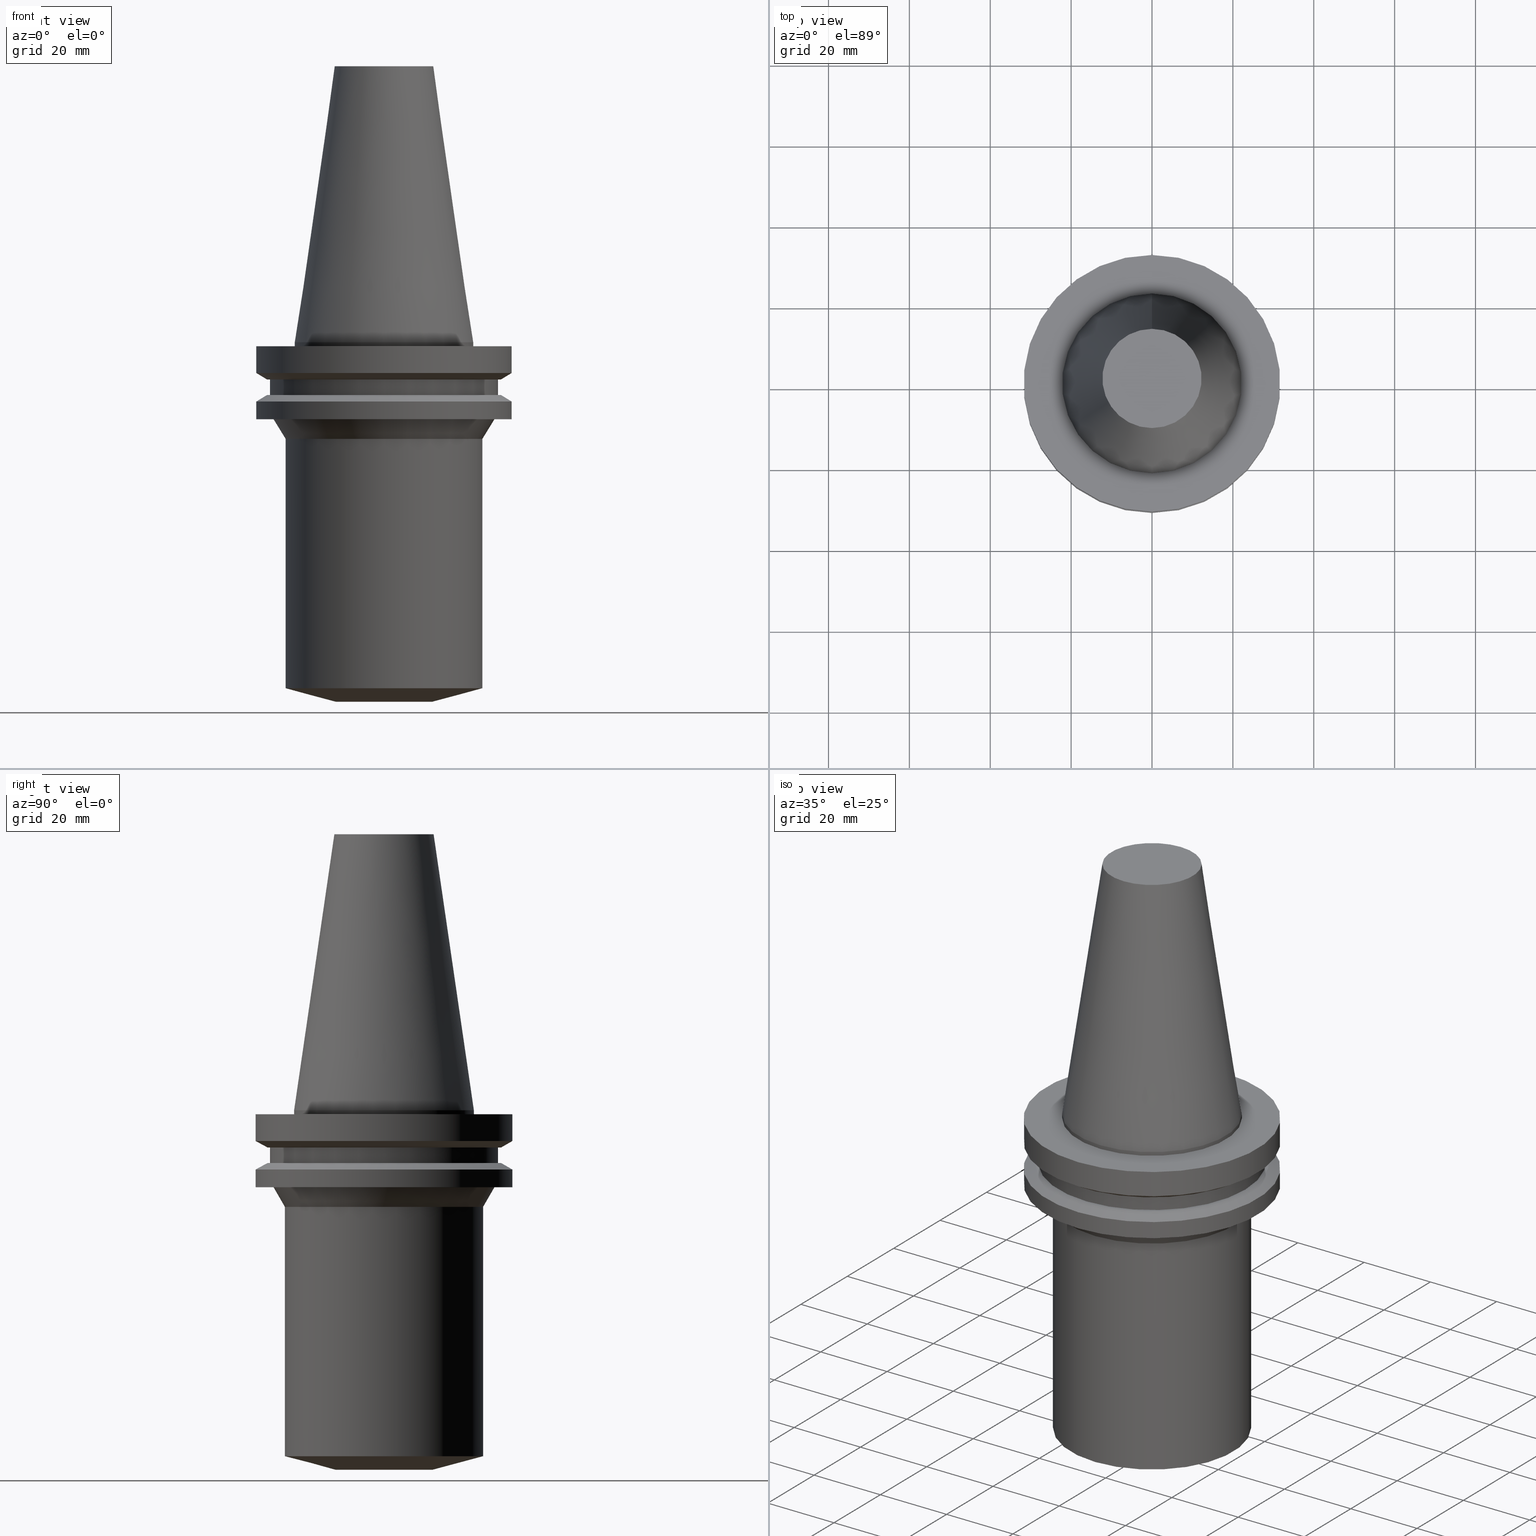
[diagram: canonical four-view strip — front | top / right | iso, engineering-drawing reading convention]
A machine part, canonical four-view strip (front | top / right | iso — engineering-drawing reading convention). The complete STEP part file that produces these views, byte-faithful:
ISO-10303-21;
HEADER;
FILE_DESCRIPTION((''),'1');
FILE_NAME('V:/01_Dxf_Field-HP\X2\FF71FF6FFF8CFF9F5916\X0\2013/BIGKAISER\X2\FF76FF80FF9BFF78FF9E63B28F095206\X0\_BKUS_201803/BCV40Y-BSL/BCV40Y-BSL.750-3.5.stp','2018-03-13T06:21:03',(''),(''),'Spatial Interop R21 SP3','Kubotek KeyCreator 2011 V10.0.2 (22737)',' ');
FILE_SCHEMA(('automotive_design'));
ENDSEC;
DATA;
#1=MECHANICAL_DESIGN_GEOMETRIC_PRESENTATION_REPRESENTATION(' ',(#10,#11,#12,#13,#14,#15,#16,#17,#18,#19,#20,#21,#22,#23,#24,#25,#26,#27,#28,#29,#30,#31,#32,#33,#34,#35,#36,#37,#38,#39,#40,#41),#6);
#2=PRODUCT_DEFINITION_CONTEXT('',#42,'design');
#3=APPLICATION_PROTOCOL_DEFINITION('INTERNATIONAL STANDARD','automotive_design',1994,#42);
#4=PRODUCT_CATEGORY_RELATIONSHIP('NONE','NONE',#43,#44);
#5=SHAPE_DEFINITION_REPRESENTATION(#45,#46);
#6= (GEOMETRIC_REPRESENTATION_CONTEXT(3)GLOBAL_UNCERTAINTY_ASSIGNED_CONTEXT((#49))GLOBAL_UNIT_ASSIGNED_CONTEXT((#51,#52,#53))REPRESENTATION_CONTEXT('NONE','WORKSPACE'));
#10=STYLED_ITEM('',(#55),#56);
#11=STYLED_ITEM('',(#57,#58),#59);
#12=STYLED_ITEM('',(#60),#61);
#13=STYLED_ITEM('',(#62),#63);
#14=STYLED_ITEM('',(#64,#65),#66);
#15=STYLED_ITEM('',(#67),#68);
#16=STYLED_ITEM('',(#69),#70);
#17=STYLED_ITEM('',(#71),#72);
#18=STYLED_ITEM('',(#73,#74),#75);
#19=STYLED_ITEM('',(#76,#77),#78);
#20=STYLED_ITEM('',(#79,#80),#81);
#21=STYLED_ITEM('',(#82,#83),#84);
#22=STYLED_ITEM('',(#85,#86),#87);
#23=STYLED_ITEM('',(#88),#89);
#24=STYLED_ITEM('',(#90,#91),#92);
#25=STYLED_ITEM('',(#93),#94);
#26=STYLED_ITEM('',(#95),#96);
#27=STYLED_ITEM('',(#97,#98),#99);
#28=STYLED_ITEM('',(#100,#101),#102);
#29=STYLED_ITEM('',(#103,#104),#105);
#30=STYLED_ITEM('',(#106),#107);
#31=STYLED_ITEM('',(#108,#109),#110);
#32=STYLED_ITEM('',(#111,#112),#113);
#33=STYLED_ITEM('',(#114,#115),#116);
#34=STYLED_ITEM('',(#117),#118);
#35=STYLED_ITEM('',(#119),#120);
#36=STYLED_ITEM('',(#121,#122),#123);
#37=STYLED_ITEM('',(#124),#125);
#38=STYLED_ITEM('',(#126),#127);
#39=STYLED_ITEM('',(#128),#129);
#40=STYLED_ITEM('',(#130,#131),#132);
#41=STYLED_ITEM('',(#133,#134),#135);
#42=APPLICATION_CONTEXT(' ');
#43=PRODUCT_CATEGORY('part','NONE');
#44=PRODUCT_RELATED_PRODUCT_CATEGORY('detail',' ',(#136));
#45=PRODUCT_DEFINITION_SHAPE('NONE','NONE',#137);
#46=ADVANCED_BREP_SHAPE_REPRESENTATION('Unnamed[1]',(#135,#138),#6);
#49=UNCERTAINTY_MEASURE_WITH_UNIT(LENGTH_MEASURE(1.0E-006),#51,'','');
#51= (CONVERSION_BASED_UNIT('MILLIMETRE',#141)LENGTH_UNIT()NAMED_UNIT(#144));
#52= (NAMED_UNIT(#146)PLANE_ANGLE_UNIT()SI_UNIT($,.RADIAN.));
#53= (NAMED_UNIT(#146)SOLID_ANGLE_UNIT()SI_UNIT($,.STERADIAN.));
#55=PRESENTATION_STYLE_ASSIGNMENT((#152));
#56=EDGE_CURVE('Unnamed[1]',#153,#153,#154,.T.);
#57=PRESENTATION_STYLE_ASSIGNMENT((#155));
#58=PRESENTATION_STYLE_ASSIGNMENT((#156));
#59=ADVANCED_FACE('Unnamed[1]',(#157,#158),#159,.T.);
#60=PRESENTATION_STYLE_ASSIGNMENT((#160));
#61=EDGE_CURVE('Unnamed[1]',#161,#161,#162,.T.);
#62=PRESENTATION_STYLE_ASSIGNMENT((#163));
#63=EDGE_CURVE('Unnamed[1]',#164,#164,#165,.T.);
#64=PRESENTATION_STYLE_ASSIGNMENT((#166));
#65=PRESENTATION_STYLE_ASSIGNMENT((#167));
#66=ADVANCED_FACE('Unnamed[1]',(#168,#169),#170,.T.);
#67=PRESENTATION_STYLE_ASSIGNMENT((#171));
#68=EDGE_CURVE('Unnamed[1]',#172,#172,#173,.T.);
#69=PRESENTATION_STYLE_ASSIGNMENT((#174));
#70=EDGE_CURVE('Unnamed[1]',#175,#175,#176,.T.);
#71=PRESENTATION_STYLE_ASSIGNMENT((#177));
#72=EDGE_CURVE('Unnamed[1]',#178,#178,#179,.T.);
#73=PRESENTATION_STYLE_ASSIGNMENT((#180));
#74=PRESENTATION_STYLE_ASSIGNMENT((#181));
#75=ADVANCED_FACE('Unnamed[1]',(#182,#183),#184,.T.);
#76=PRESENTATION_STYLE_ASSIGNMENT((#185));
#77=PRESENTATION_STYLE_ASSIGNMENT((#186));
#78=ADVANCED_FACE('Unnamed[1]',(#187,#188),#189,.T.);
#79=PRESENTATION_STYLE_ASSIGNMENT((#190));
#80=PRESENTATION_STYLE_ASSIGNMENT((#191));
#81=ADVANCED_FACE('Unnamed[1]',(#192,#193),#194,.T.);
#82=PRESENTATION_STYLE_ASSIGNMENT((#195));
#83=PRESENTATION_STYLE_ASSIGNMENT((#196));
#84=ADVANCED_FACE('Unnamed[1]',(#197),#198,.T.);
#85=PRESENTATION_STYLE_ASSIGNMENT((#199));
#86=PRESENTATION_STYLE_ASSIGNMENT((#200));
#87=ADVANCED_FACE('Unnamed[1]',(#201,#202),#203,.T.);
#88=PRESENTATION_STYLE_ASSIGNMENT((#204));
#89=EDGE_CURVE('Unnamed[1]',#205,#205,#206,.T.);
#90=PRESENTATION_STYLE_ASSIGNMENT((#207));
#91=PRESENTATION_STYLE_ASSIGNMENT((#208));
#92=ADVANCED_FACE('Unnamed[1]',(#209,#210),#211,.T.);
#93=PRESENTATION_STYLE_ASSIGNMENT((#212));
#94=EDGE_CURVE('Unnamed[1]',#213,#213,#214,.T.);
#95=PRESENTATION_STYLE_ASSIGNMENT((#215));
#96=EDGE_CURVE('Unnamed[1]',#216,#216,#217,.T.);
#97=PRESENTATION_STYLE_ASSIGNMENT((#218));
#98=PRESENTATION_STYLE_ASSIGNMENT((#219));
#99=ADVANCED_FACE('Unnamed[1]',(#220,#221),#222,.T.);
#100=PRESENTATION_STYLE_ASSIGNMENT((#223));
#101=PRESENTATION_STYLE_ASSIGNMENT((#224));
#102=ADVANCED_FACE('Unnamed[1]',(#225,#226),#227,.T.);
#103=PRESENTATION_STYLE_ASSIGNMENT((#228));
#104=PRESENTATION_STYLE_ASSIGNMENT((#229));
#105=ADVANCED_FACE('Unnamed[1]',(#230),#231,.T.);
#106=PRESENTATION_STYLE_ASSIGNMENT((#232));
#107=EDGE_CURVE('Unnamed[1]',#233,#233,#234,.T.);
#108=PRESENTATION_STYLE_ASSIGNMENT((#235));
#109=PRESENTATION_STYLE_ASSIGNMENT((#236));
#110=ADVANCED_FACE('Unnamed[1]',(#237,#238),#239,.T.);
#111=PRESENTATION_STYLE_ASSIGNMENT((#240));
#112=PRESENTATION_STYLE_ASSIGNMENT((#241));
#113=ADVANCED_FACE('Unnamed[1]',(#242,#243),#244,.T.);
#114=PRESENTATION_STYLE_ASSIGNMENT((#245));
#115=PRESENTATION_STYLE_ASSIGNMENT((#246));
#116=ADVANCED_FACE('Unnamed[1]',(#247,#248),#249,.T.);
#117=PRESENTATION_STYLE_ASSIGNMENT((#250));
#118=EDGE_CURVE('Unnamed[1]',#251,#251,#252,.T.);
#119=PRESENTATION_STYLE_ASSIGNMENT((#253));
#120=EDGE_CURVE('Unnamed[1]',#254,#254,#255,.T.);
#121=PRESENTATION_STYLE_ASSIGNMENT((#256));
#122=PRESENTATION_STYLE_ASSIGNMENT((#257));
#123=ADVANCED_FACE('Unnamed[1]',(#258,#259),#260,.T.);
#124=PRESENTATION_STYLE_ASSIGNMENT((#261));
#125=EDGE_CURVE('Unnamed[1]',#262,#262,#263,.T.);
#126=PRESENTATION_STYLE_ASSIGNMENT((#264));
#127=EDGE_CURVE('Unnamed[1]',#265,#265,#266,.T.);
#128=PRESENTATION_STYLE_ASSIGNMENT((#267));
#129=EDGE_CURVE('Unnamed[1]',#268,#268,#269,.T.);
#130=PRESENTATION_STYLE_ASSIGNMENT((#270));
#131=PRESENTATION_STYLE_ASSIGNMENT((#271));
#132=ADVANCED_FACE('Unnamed[1]',(#272,#273),#274,.T.);
#133=PRESENTATION_STYLE_ASSIGNMENT((#275));
#134=PRESENTATION_STYLE_ASSIGNMENT((#276));
#135=MANIFOLD_SOLID_BREP('Unnamed[1]',#277);
#136=PRODUCT('Unnamed[1]','Unnamed[1]','PART-Unnamed[1]-DESC',(#278));
#137=PRODUCT_DEFINITION('NONE','NONE',#279,#2);
#138=AXIS2_PLACEMENT_3D('',#280,#281,#282);
#141=LENGTH_MEASURE_WITH_UNIT(LENGTH_MEASURE(1.0),#283);
#144=DIMENSIONAL_EXPONENTS(1.0,0.0,0.0,0.0,0.0,0.0,0.0);
#146=DIMENSIONAL_EXPONENTS(0.0,0.0,0.0,0.0,0.0,0.0,0.0);
#152=CURVE_STYLE('',#284,POSITIVE_LENGTH_MEASURE(1000.0),#285);
#153=VERTEX_POINT('',#286);
#154=CIRCLE('',#287,24.5000000000176);
#155=SURFACE_STYLE_USAGE(.BOTH.,#288);
#156=CURVE_STYLE('',#289,POSITIVE_LENGTH_MEASURE(1000.0),#290);
#157=FACE_BOUND('',#291,.T.);
#158=FACE_BOUND('',#292,.T.);
#159=CYLINDRICAL_SURFACE('',#293,31.75);
#160=CURVE_STYLE('',#294,POSITIVE_LENGTH_MEASURE(1000.0),#295);
#161=VERTEX_POINT('',#296);
#162=CIRCLE('',#297,22.225);
#163=CURVE_STYLE('',#298,POSITIVE_LENGTH_MEASURE(1000.0),#299);
#164=VERTEX_POINT('',#300);
#165=CIRCLE('',#301,24.5000000000476);
#166=SURFACE_STYLE_USAGE(.BOTH.,#302);
#167=CURVE_STYLE('',#303,POSITIVE_LENGTH_MEASURE(1000.0),#304);
#168=FACE_BOUND('',#305,.T.);
#169=FACE_OUTER_BOUND('',#306,.T.);
#170=PLANE('',#307);
#171=CURVE_STYLE('',#308,POSITIVE_LENGTH_MEASURE(1000.0),#309);
#172=VERTEX_POINT('',#310);
#173=CIRCLE('',#311,22.225);
#174=CURVE_STYLE('',#312,POSITIVE_LENGTH_MEASURE(1000.0),#313);
#175=VERTEX_POINT('',#314);
#176=CIRCLE('',#315,28.98016191);
#177=CURVE_STYLE('',#316,POSITIVE_LENGTH_MEASURE(1000.0),#317);
#178=VERTEX_POINT('',#318);
#179=CIRCLE('',#319,31.75);
#180=SURFACE_STYLE_USAGE(.BOTH.,#320);
#181=CURVE_STYLE('',#321,POSITIVE_LENGTH_MEASURE(1000.0),#322);
#182=FACE_BOUND('',#323,.T.);
#183=FACE_BOUND('',#324,.T.);
#184=CYLINDRICAL_SURFACE('',#325,28.18);
#185=SURFACE_STYLE_USAGE(.BOTH.,#326);
#186=CURVE_STYLE('',#327,POSITIVE_LENGTH_MEASURE(1000.0),#328);
#187=FACE_BOUND('',#329,.T.);
#188=FACE_BOUND('',#330,.T.);
#189=CONICAL_SURFACE('',#331,25.9000744027908,0.523598775597958);
#190=SURFACE_STYLE_USAGE(.BOTH.,#332);
#191=CURVE_STYLE('',#333,POSITIVE_LENGTH_MEASURE(1000.0),#334);
#192=FACE_BOUND('',#335,.T.);
#193=FACE_BOUND('',#336,.T.);
#194=CONICAL_SURFACE('',#337,17.2484375007384,0.144812498217751);
#195=SURFACE_STYLE_USAGE(.BOTH.,#338);
#196=CURVE_STYLE('',#339,POSITIVE_LENGTH_MEASURE(1000.0),#340);
#197=FACE_OUTER_BOUND('',#341,.T.);
#198=PLANE('',#342);
#199=SURFACE_STYLE_USAGE(.BOTH.,#343);
#200=CURVE_STYLE('',#344,POSITIVE_LENGTH_MEASURE(1000.0),#345);
#201=FACE_BOUND('',#346,.T.);
#202=FACE_OUTER_BOUND('',#347,.T.);
#203=PLANE('',#348);
#204=CURVE_STYLE('',#349,POSITIVE_LENGTH_MEASURE(1000.0),#350);
#205=VERTEX_POINT('',#351);
#206=CIRCLE('',#352,12.0000000000065);
#207=SURFACE_STYLE_USAGE(.BOTH.,#353);
#208=CURVE_STYLE('',#354,POSITIVE_LENGTH_MEASURE(1000.0),#355);
#209=FACE_OUTER_BOUND('',#356,.T.);
#210=FACE_BOUND('',#357,.T.);
#211=PLANE('',#358);
#212=CURVE_STYLE('',#359,POSITIVE_LENGTH_MEASURE(1000.0),#360);
#213=VERTEX_POINT('',#361);
#214=CIRCLE('',#362,27.300148805564);
#215=CURVE_STYLE('',#363,POSITIVE_LENGTH_MEASURE(1000.0),#364);
#216=VERTEX_POINT('',#365);
#217=CIRCLE('',#366,31.75);
#218=SURFACE_STYLE_USAGE(.BOTH.,#367);
#219=CURVE_STYLE('',#368,POSITIVE_LENGTH_MEASURE(1000.0),#369);
#220=FACE_BOUND('',#370,.T.);
#221=FACE_BOUND('',#371,.T.);
#222=CYLINDRICAL_SURFACE('',#372,24.5000000000326);
#223=SURFACE_STYLE_USAGE(.BOTH.,#373);
#224=CURVE_STYLE('',#374,POSITIVE_LENGTH_MEASURE(1000.0),#375);
#225=FACE_BOUND('',#376,.T.);
#226=FACE_BOUND('',#377,.T.);
#227=CYLINDRICAL_SURFACE('',#378,31.75);
#228=SURFACE_STYLE_USAGE(.BOTH.,#379);
#229=CURVE_STYLE('',#380,POSITIVE_LENGTH_MEASURE(1000.0),#381);
#230=FACE_OUTER_BOUND('',#382,.T.);
#231=PLANE('',#383);
#232=CURVE_STYLE('',#384,POSITIVE_LENGTH_MEASURE(1000.0),#385);
#233=VERTEX_POINT('',#386);
#234=CIRCLE('',#387,28.18);
#235=SURFACE_STYLE_USAGE(.BOTH.,#388);
#236=CURVE_STYLE('',#389,POSITIVE_LENGTH_MEASURE(1000.0),#390);
#237=FACE_OUTER_BOUND('',#391,.T.);
#238=FACE_BOUND('',#392,.T.);
#239=PLANE('',#393);
#240=SURFACE_STYLE_USAGE(.BOTH.,#394);
#241=CURVE_STYLE('',#395,POSITIVE_LENGTH_MEASURE(1000.0),#396);
#242=FACE_BOUND('',#397,.T.);
#243=FACE_BOUND('',#398,.T.);
#244=CYLINDRICAL_SURFACE('',#399,22.225);
#245=SURFACE_STYLE_USAGE(.BOTH.,#400);
#246=CURVE_STYLE('',#401,POSITIVE_LENGTH_MEASURE(1000.0),#402);
#247=FACE_BOUND('',#403,.T.);
#248=FACE_BOUND('',#404,.T.);
#249=CONICAL_SURFACE('',#405,18.2500000000271,1.30899693899528);
#250=CURVE_STYLE('',#406,POSITIVE_LENGTH_MEASURE(1000.0),#407);
#251=VERTEX_POINT('',#408);
#252=CIRCLE('',#409,28.95591319);
#253=CURVE_STYLE('',#410,POSITIVE_LENGTH_MEASURE(1000.0),#411);
#254=VERTEX_POINT('',#412);
#255=CIRCLE('',#413,12.2718750014769);
#256=SURFACE_STYLE_USAGE(.BOTH.,#414);
#257=CURVE_STYLE('',#415,POSITIVE_LENGTH_MEASURE(1000.0),#416);
#258=FACE_BOUND('',#417,.T.);
#259=FACE_BOUND('',#418,.T.);
#260=CONICAL_SURFACE('',#419,30.365080955,1.04719755034994);
#261=CURVE_STYLE('',#420,POSITIVE_LENGTH_MEASURE(1000.0),#421);
#262=VERTEX_POINT('',#422);
#263=CIRCLE('',#423,31.75);
#264=CURVE_STYLE('',#424,POSITIVE_LENGTH_MEASURE(1000.0),#425);
#265=VERTEX_POINT('',#426);
#266=CIRCLE('',#427,31.75);
#267=CURVE_STYLE('',#428,POSITIVE_LENGTH_MEASURE(1000.0),#429);
#268=VERTEX_POINT('',#430);
#269=CIRCLE('',#431,28.18);
#270=SURFACE_STYLE_USAGE(.BOTH.,#432);
#271=CURVE_STYLE('',#433,POSITIVE_LENGTH_MEASURE(1000.0),#434);
#272=FACE_BOUND('',#435,.T.);
#273=FACE_BOUND('',#436,.T.);
#274=CONICAL_SURFACE('',#437,30.352956595,1.04719755170464);
#275=SURFACE_STYLE_USAGE(.BOTH.,#438);
#276=CURVE_STYLE('',#439,POSITIVE_LENGTH_MEASURE(1000.0),#440);
#277=CLOSED_SHELL('',(#84,#81,#113,#110,#59,#123,#66,#75,#92,#132,#102,#87,#78,#99,#116,#105));
#278=PRODUCT_CONTEXT('',#42,'mechanical');
#279=PRODUCT_DEFINITION_FORMATION_WITH_SPECIFIED_SOURCE(' ','NONE',#136,.NOT_KNOWN.);
#280=CARTESIAN_POINT('',(0.0,0.0,0.0));
#281=DIRECTION('',(0.0,0.0,1.0));
#282=DIRECTION('',(1.0,0.0,0.0));
#283= (NAMED_UNIT(#144)LENGTH_UNIT()SI_UNIT(.MILLI.,.METRE.));
#284=DRAUGHTING_PRE_DEFINED_CURVE_FONT('continuous');
#285=COLOUR_RGB('',0.0,1.0,0.0);
#286=CARTESIAN_POINT('',(1.46345292497885E-015,24.5000000000176,-23.8999999999635));
#287=AXIS2_PLACEMENT_3D('',#442,#443,#444);
#288=SURFACE_SIDE_STYLE('',(#445));
#289=DRAUGHTING_PRE_DEFINED_CURVE_FONT('continuous');
#290=COLOUR_RGB('',0.0,1.0,0.0);
#291=EDGE_LOOP('',(#446));
#292=EDGE_LOOP('',(#447));
#293=AXIS2_PLACEMENT_3D('',#448,#449,#450);
#294=DRAUGHTING_PRE_DEFINED_CURVE_FONT('continuous');
#295=COLOUR_RGB('',0.0,1.0,0.0);
#296=CARTESIAN_POINT('',(6.12323399573674E-017,22.225,-0.999999999999997));
#297=AXIS2_PLACEMENT_3D('',#451,#452,#453);
#298=DRAUGHTING_PRE_DEFINED_CURVE_FONT('continuous');
#299=COLOUR_RGB('',0.0,1.0,0.0);
#300=CARTESIAN_POINT('',(5.23846557168079E-015,24.5000000000476,-85.5506350945924));
#301=AXIS2_PLACEMENT_3D('',#454,#455,#456);
#302=SURFACE_SIDE_STYLE('',(#457));
#303=DRAUGHTING_PRE_DEFINED_CURVE_FONT('continuous');
#304=COLOUR_RGB('',0.0,1.0,0.0);
#305=EDGE_LOOP('',(#458));
#306=EDGE_LOOP('',(#459));
#307=AXIS2_PLACEMENT_3D('',#460,#461,#462);
#308=DRAUGHTING_PRE_DEFINED_CURVE_FONT('continuous');
#309=COLOUR_RGB('',0.0,1.0,0.0);
#310=CARTESIAN_POINT('',(-2.73944275289641E-031,22.225,2.72177751110499E-015));
#311=AXIS2_PLACEMENT_3D('',#463,#464,#465);
#312=DRAUGHTING_PRE_DEFINED_CURVE_FONT('continuous');
#313=COLOUR_RGB('',0.0,1.0,0.0);
#314=CARTESIAN_POINT('',(5.63337527607782E-016,28.98016191,-9.2));
#315=AXIS2_PLACEMENT_3D('',#466,#467,#468);
#316=DRAUGHTING_PRE_DEFINED_CURVE_FONT('continuous');
#317=COLOUR_RGB('',0.0,1.0,0.0);
#318=CARTESIAN_POINT('',(1.16647607618785E-015,31.75,-19.05));
#319=AXIS2_PLACEMENT_3D('',#469,#470,#471);
#320=SURFACE_SIDE_STYLE('',(#472));
#321=DRAUGHTING_PRE_DEFINED_CURVE_FONT('continuous');
#322=COLOUR_RGB('',0.0,1.0,0.0);
#323=EDGE_LOOP('',(#473));
#324=EDGE_LOOP('',(#474));
#325=AXIS2_PLACEMENT_3D('',#475,#476,#477);
#326=SURFACE_SIDE_STYLE('',(#478));
#327=DRAUGHTING_PRE_DEFINED_CURVE_FONT('continuous');
#328=COLOUR_RGB('',0.0,1.0,0.0);
#329=EDGE_LOOP('',(#479));
#330=EDGE_LOOP('',(#480));
#331=AXIS2_PLACEMENT_3D('',#481,#482,#483);
#332=SURFACE_SIDE_STYLE('',(#484));
#333=DRAUGHTING_PRE_DEFINED_CURVE_FONT('continuous');
#334=COLOUR_RGB('',0.0,1.0,0.0);
#335=EDGE_LOOP('',(#485));
#336=EDGE_LOOP('',(#486));
#337=AXIS2_PLACEMENT_3D('',#487,#488,#489);
#338=SURFACE_SIDE_STYLE('',(#490));
#339=DRAUGHTING_PRE_DEFINED_CURVE_FONT('continuous');
#340=COLOUR_RGB('',0.0,1.0,0.0);
#341=EDGE_LOOP('',(#491));
#342=AXIS2_PLACEMENT_3D('',#492,#493,#494);
#343=SURFACE_SIDE_STYLE('',(#495));
#344=DRAUGHTING_PRE_DEFINED_CURVE_FONT('continuous');
#345=COLOUR_RGB('',0.0,1.0,0.0);
#346=EDGE_LOOP('',(#496));
#347=EDGE_LOOP('',(#497));
#348=AXIS2_PLACEMENT_3D('',#498,#499,#500);
#349=DRAUGHTING_PRE_DEFINED_CURVE_FONT('continuous');
#350=COLOUR_RGB('',0.0,1.0,0.0);
#351=CARTESIAN_POINT('',(5.44355502220991E-015,12.0000000000065,-88.8999999999987));
#352=AXIS2_PLACEMENT_3D('',#501,#502,#503);
#353=SURFACE_SIDE_STYLE('',(#504));
#354=DRAUGHTING_PRE_DEFINED_CURVE_FONT('continuous');
#355=COLOUR_RGB('',0.0,1.0,0.0);
#356=EDGE_LOOP('',(#505));
#357=EDGE_LOOP('',(#506));
#358=AXIS2_PLACEMENT_3D('',#507,#508,#509);
#359=DRAUGHTING_PRE_DEFINED_CURVE_FONT('continuous');
#360=COLOUR_RGB('',0.0,1.0,0.0);
#361=CARTESIAN_POINT('',(1.16647607618785E-015,27.300148805564,-19.05));
#362=AXIS2_PLACEMENT_3D('',#510,#511,#512);
#363=DRAUGHTING_PRE_DEFINED_CURVE_FONT('continuous');
#364=COLOUR_RGB('',0.0,1.0,0.0);
#365=CARTESIAN_POINT('',(4.65416804298617E-016,31.75,-7.60083323));
#366=AXIS2_PLACEMENT_3D('',#513,#514,#515);
#367=SURFACE_SIDE_STYLE('',(#516));
#368=DRAUGHTING_PRE_DEFINED_CURVE_FONT('continuous');
#369=COLOUR_RGB('',0.0,1.0,0.0);
#370=EDGE_LOOP('',(#517));
#371=EDGE_LOOP('',(#518));
#372=AXIS2_PLACEMENT_3D('',#519,#520,#521);
#373=SURFACE_SIDE_STYLE('',(#522));
#374=DRAUGHTING_PRE_DEFINED_CURVE_FONT('continuous');
#375=COLOUR_RGB('',0.0,1.0,0.0);
#376=EDGE_LOOP('',(#523));
#377=EDGE_LOOP('',(#524));
#378=AXIS2_PLACEMENT_3D('',#525,#526,#527);
#379=SURFACE_SIDE_STYLE('',(#528));
#380=DRAUGHTING_PRE_DEFINED_CURVE_FONT('continuous');
#381=COLOUR_RGB('',0.0,1.0,0.0);
#382=EDGE_LOOP('',(#529));
#383=AXIS2_PLACEMENT_3D('',#530,#531,#532);
#384=DRAUGHTING_PRE_DEFINED_CURVE_FONT('continuous');
#385=COLOUR_RGB('',0.0,1.0,0.0);
#386=CARTESIAN_POINT('',(5.63337527607782E-016,28.18,-9.2));
#387=AXIS2_PLACEMENT_3D('',#533,#534,#535);
#388=SURFACE_SIDE_STYLE('',(#536));
#389=DRAUGHTING_PRE_DEFINED_CURVE_FONT('continuous');
#390=COLOUR_RGB('',0.0,1.0,0.0);
#391=EDGE_LOOP('',(#537));
#392=EDGE_LOOP('',(#538));
#393=AXIS2_PLACEMENT_3D('',#539,#540,#541);
#394=SURFACE_SIDE_STYLE('',(#542));
#395=DRAUGHTING_PRE_DEFINED_CURVE_FONT('continuous');
#396=COLOUR_RGB('',0.0,1.0,0.0);
#397=EDGE_LOOP('',(#543));
#398=EDGE_LOOP('',(#544));
#399=AXIS2_PLACEMENT_3D('',#545,#546,#547);
#400=SURFACE_SIDE_STYLE('',(#548));
#401=DRAUGHTING_PRE_DEFINED_CURVE_FONT('continuous');
#402=COLOUR_RGB('',0.0,1.0,0.0);
#403=EDGE_LOOP('',(#549));
#404=EDGE_LOOP('',(#550));
#405=AXIS2_PLACEMENT_3D('',#551,#552,#553);
#406=DRAUGHTING_PRE_DEFINED_CURVE_FONT('continuous');
#407=COLOUR_RGB('',0.0,1.0,0.0);
#408=CARTESIAN_POINT('',(7.98469713044073E-016,28.95591319,-13.04));
#409=AXIS2_PLACEMENT_3D('',#554,#555,#556);
#410=DRAUGHTING_PRE_DEFINED_CURVE_FONT('continuous');
#411=COLOUR_RGB('',0.0,1.0,0.0);
#412=CARTESIAN_POINT('',(-4.17910720209034E-015,12.2718750014769,68.25));
#413=AXIS2_PLACEMENT_3D('',#557,#558,#559);
#414=SURFACE_SIDE_STYLE('',(#560));
#415=DRAUGHTING_PRE_DEFINED_CURVE_FONT('continuous');
#416=COLOUR_RGB('',0.0,1.0,0.0);
#417=EDGE_LOOP('',(#561));
#418=EDGE_LOOP('',(#562));
#419=AXIS2_PLACEMENT_3D('',#563,#564,#565);
#420=DRAUGHTING_PRE_DEFINED_CURVE_FONT('continuous');
#421=COLOUR_RGB('',0.0,1.0,0.0);
#422=CARTESIAN_POINT('',(8.97247689112643E-016,31.75,-14.65316677));
#423=AXIS2_PLACEMENT_3D('',#566,#567,#568);
#424=DRAUGHTING_PRE_DEFINED_CURVE_FONT('continuous');
#425=COLOUR_RGB('',0.0,1.0,0.0);
#426=CARTESIAN_POINT('',(6.12323399573673E-017,31.75,-0.999999999999996));
#427=AXIS2_PLACEMENT_3D('',#569,#570,#571);
#428=DRAUGHTING_PRE_DEFINED_CURVE_FONT('continuous');
#429=COLOUR_RGB('',0.0,1.0,0.0);
#430=CARTESIAN_POINT('',(7.98469713044073E-016,28.18,-13.04));
#431=AXIS2_PLACEMENT_3D('',#572,#573,#574);
#432=SURFACE_SIDE_STYLE('',(#575));
#433=DRAUGHTING_PRE_DEFINED_CURVE_FONT('continuous');
#434=COLOUR_RGB('',0.0,1.0,0.0);
#435=EDGE_LOOP('',(#576));
#436=EDGE_LOOP('',(#577));
#437=AXIS2_PLACEMENT_3D('',#578,#579,#580);
#438=SURFACE_SIDE_STYLE('',(#581));
#439=DRAUGHTING_PRE_DEFINED_CURVE_FONT('continuous');
#440=COLOUR_RGB('',0.0,1.0,0.0);
#442=CARTESIAN_POINT('',(1.46345292497885E-015,2.9269058499577E-015,-23.8999999999635));
#443=DIRECTION('',(6.12323399573677E-017,1.22464679914735E-016,-1.0));
#444=DIRECTION('',(-1.23259516440783E-032,1.0,1.22464679914735E-016));
#445=SURFACE_STYLE_FILL_AREA(#582);
#446=ORIENTED_EDGE('',*,*,#96,.F.);
#447=ORIENTED_EDGE('',*,*,#127,.T.);
#448=CARTESIAN_POINT('',(2.63324572127992E-016,5.26649144255985E-016,-4.300416615));
#449=DIRECTION('',(6.12323399573677E-017,1.22464679914735E-016,-1.0));
#450=DIRECTION('',(-1.23259516440783E-032,1.0,1.22464679914735E-016));
#451=CARTESIAN_POINT('',(6.12323399573677E-017,1.22464679914735E-016,-1.0));
#452=DIRECTION('',(6.12323399573677E-017,1.22464679914735E-016,-1.0));
#453=DIRECTION('',(-1.23259516440783E-032,1.0,1.22464679914735E-016));
#454=CARTESIAN_POINT('',(5.23846557168079E-015,1.04769311433616E-014,-85.5506350945924));
#455=DIRECTION('',(6.12323399573677E-017,1.22464679914735E-016,-1.0));
#456=DIRECTION('',(-1.23259516440783E-032,1.0,1.22464679914735E-016));
#457=SURFACE_STYLE_FILL_AREA(#583);
#458=ORIENTED_EDGE('',*,*,#107,.F.);
#459=ORIENTED_EDGE('',*,*,#70,.T.);
#460=CARTESIAN_POINT('',(5.63337527607782E-016,28.580080955,-9.2));
#461=DIRECTION('',(6.12323399573677E-017,1.22464679914735E-016,-1.0));
#462=DIRECTION('',(-1.23259516440783E-032,1.0,1.22464679914735E-016));
#463=CARTESIAN_POINT('',(0.0,0.0,0.0));
#464=DIRECTION('',(6.12323399573677E-017,1.22464679914735E-016,-1.0));
#465=DIRECTION('',(-1.23259516440783E-032,1.0,1.22464679914735E-016));
#466=CARTESIAN_POINT('',(5.63337527607783E-016,1.12667505521557E-015,-9.2));
#467=DIRECTION('',(6.12323399573677E-017,1.22464679914735E-016,-1.0));
#468=DIRECTION('',(-1.23259516440783E-032,1.0,1.22464679914735E-016));
#469=CARTESIAN_POINT('',(1.16647607618785E-015,2.33295215237571E-015,-19.05));
#470=DIRECTION('',(6.12323399573677E-017,1.22464679914735E-016,-1.0));
#471=DIRECTION('',(-1.23259516440783E-032,1.0,1.22464679914735E-016));
#472=SURFACE_STYLE_FILL_AREA(#584);
#473=ORIENTED_EDGE('',*,*,#129,.F.);
#474=ORIENTED_EDGE('',*,*,#107,.T.);
#475=CARTESIAN_POINT('',(6.80903620325929E-016,1.36180724065186E-015,-11.12));
#476=DIRECTION('',(6.12323399573677E-017,1.22464679914735E-016,-1.0));
#477=DIRECTION('',(-1.23259516440783E-032,1.0,1.22464679914735E-016));
#478=SURFACE_STYLE_FILL_AREA(#585);
#479=ORIENTED_EDGE('',*,*,#56,.F.);
#480=ORIENTED_EDGE('',*,*,#94,.T.);
#481=CARTESIAN_POINT('',(1.31496450058335E-015,2.6299290011667E-015,-21.4749999999817));
#482=DIRECTION('',(-6.12323399573677E-017,-1.22464679914735E-016,1.0));
#483=DIRECTION('',(-1.23259516440783E-032,1.0,1.22464679914735E-016));
#484=SURFACE_STYLE_FILL_AREA(#586);
#485=ORIENTED_EDGE('',*,*,#68,.F.);
#486=ORIENTED_EDGE('',*,*,#120,.T.);
#487=CARTESIAN_POINT('',(-2.08955360104517E-015,-4.17910720209034E-015,34.125));
#488=DIRECTION('',(6.12323399573677E-017,1.22464679914735E-016,-1.0));
#489=DIRECTION('',(-1.23259516440783E-032,1.0,1.22464679914735E-016));
#490=SURFACE_STYLE_FILL_AREA(#587);
#491=ORIENTED_EDGE('',*,*,#120,.F.);
#492=CARTESIAN_POINT('',(-4.17910720209034E-015,6.13593750073843,68.25));
#493=DIRECTION('',(-6.12323399573677E-017,-1.22464679914735E-016,1.0));
#494=DIRECTION('',(1.23259516440783E-032,-1.0,-1.22464679914735E-016));
#495=SURFACE_STYLE_FILL_AREA(#588);
#496=ORIENTED_EDGE('',*,*,#94,.F.);
#497=ORIENTED_EDGE('',*,*,#72,.T.);
#498=CARTESIAN_POINT('',(1.16647607618785E-015,29.525074402782,-19.05));
#499=DIRECTION('',(6.12323399573677E-017,1.22464679914735E-016,-1.0));
#500=DIRECTION('',(-1.23259516440783E-032,1.0,1.22464679914735E-016));
#501=CARTESIAN_POINT('',(5.44355502220991E-015,1.08871100444198E-014,-88.8999999999987));
#502=DIRECTION('',(6.12323399573677E-017,1.22464679914735E-016,-1.0));
#503=DIRECTION('',(-1.23259516440783E-032,1.0,1.22464679914735E-016));
#504=SURFACE_STYLE_FILL_AREA(#589);
#505=ORIENTED_EDGE('',*,*,#118,.F.);
#506=ORIENTED_EDGE('',*,*,#129,.T.);
#507=CARTESIAN_POINT('',(7.98469713044073E-016,28.567956595,-13.04));
#508=DIRECTION('',(-6.12323399573677E-017,-1.22464679914735E-016,1.0));
#509=DIRECTION('',(1.23259516440783E-032,-1.0,-1.22464679914735E-016));
#510=CARTESIAN_POINT('',(1.16647607618785E-015,2.33295215237571E-015,-19.05));
#511=DIRECTION('',(6.12323399573677E-017,1.22464679914735E-016,-1.0));
#512=DIRECTION('',(-1.23259516440783E-032,1.0,1.22464679914735E-016));
#513=CARTESIAN_POINT('',(4.65416804298617E-016,9.30833608597234E-016,-7.60083323000001));
#514=DIRECTION('',(6.12323399573677E-017,1.22464679914735E-016,-1.0));
#515=DIRECTION('',(-1.23259516440783E-032,1.0,1.22464679914735E-016));
#516=SURFACE_STYLE_FILL_AREA(#590);
#517=ORIENTED_EDGE('',*,*,#63,.F.);
#518=ORIENTED_EDGE('',*,*,#56,.T.);
#519=CARTESIAN_POINT('',(3.35095924832982E-015,6.70191849665964E-015,-54.7253175472779));
#520=DIRECTION('',(6.12323399573677E-017,1.22464679914735E-016,-1.0));
#521=DIRECTION('',(-1.23259516440783E-032,1.0,1.22464679914735E-016));
#522=SURFACE_STYLE_FILL_AREA(#591);
#523=ORIENTED_EDGE('',*,*,#72,.F.);
#524=ORIENTED_EDGE('',*,*,#125,.T.);
#525=CARTESIAN_POINT('',(1.03186188265025E-015,2.0637237653005E-015,-16.851583385));
#526=DIRECTION('',(6.12323399573677E-017,1.22464679914735E-016,-1.0));
#527=DIRECTION('',(-1.23259516440783E-032,1.0,1.22464679914735E-016));
#528=SURFACE_STYLE_FILL_AREA(#592);
#529=ORIENTED_EDGE('',*,*,#89,.T.);
#530=CARTESIAN_POINT('',(5.44355502220991E-015,6.00000000000327,-88.8999999999987));
#531=DIRECTION('',(6.12323399573677E-017,1.22464679914735E-016,-1.0));
#532=DIRECTION('',(-1.23259516440783E-032,1.0,1.22464679914735E-016));
#533=CARTESIAN_POINT('',(5.63337527607783E-016,1.12667505521557E-015,-9.2));
#534=DIRECTION('',(6.12323399573677E-017,1.22464679914735E-016,-1.0));
#535=DIRECTION('',(-1.23259516440783E-032,1.0,1.22464679914735E-016));
#536=SURFACE_STYLE_FILL_AREA(#593);
#537=ORIENTED_EDGE('',*,*,#127,.F.);
#538=ORIENTED_EDGE('',*,*,#61,.T.);
#539=CARTESIAN_POINT('',(6.12323399573673E-017,26.9875,-0.999999999999997));
#540=DIRECTION('',(-6.12323399573677E-017,-1.22464679914735E-016,1.0));
#541=DIRECTION('',(1.23259516440783E-032,-1.0,-1.22464679914735E-016));
#542=SURFACE_STYLE_FILL_AREA(#594);
#543=ORIENTED_EDGE('',*,*,#61,.F.);
#544=ORIENTED_EDGE('',*,*,#68,.T.);
#545=CARTESIAN_POINT('',(3.06161699786838E-017,6.12323399573676E-017,-0.5));
#546=DIRECTION('',(6.12323399573677E-017,1.22464679914735E-016,-1.0));
#547=DIRECTION('',(-1.23259516440783E-032,1.0,1.22464679914735E-016));
#548=SURFACE_STYLE_FILL_AREA(#595);
#549=ORIENTED_EDGE('',*,*,#89,.F.);
#550=ORIENTED_EDGE('',*,*,#63,.T.);
#551=CARTESIAN_POINT('',(5.34101029694535E-015,1.06820205938907E-014,-87.2253175472955));
#552=DIRECTION('',(-6.12323399573677E-017,-1.22464679914735E-016,1.0));
#553=DIRECTION('',(-1.23259516440783E-032,1.0,1.22464679914735E-016));
#554=CARTESIAN_POINT('',(7.98469713044074E-016,1.59693942608815E-015,-13.04));
#555=DIRECTION('',(6.12323399573677E-017,1.22464679914735E-016,-1.0));
#556=DIRECTION('',(-1.23259516440783E-032,1.0,1.22464679914735E-016));
#557=CARTESIAN_POINT('',(-4.17910720209034E-015,-8.35821440418068E-015,68.25));
#558=DIRECTION('',(6.12323399573677E-017,1.22464679914735E-016,-1.0));
#559=DIRECTION('',(-1.23259516440783E-032,1.0,1.22464679914735E-016));
#560=SURFACE_STYLE_FILL_AREA(#596);
#561=ORIENTED_EDGE('',*,*,#70,.F.);
#562=ORIENTED_EDGE('',*,*,#96,.T.);
#563=CARTESIAN_POINT('',(5.143771659532E-016,1.0287543319064E-015,-8.40041661500001));
#564=DIRECTION('',(-6.12323399573677E-017,-1.22464679914735E-016,1.0));
#565=DIRECTION('',(-1.23259516440783E-032,1.0,1.22464679914735E-016));
#566=CARTESIAN_POINT('',(8.97247689112643E-016,1.79449537822529E-015,-14.65316677));
#567=DIRECTION('',(6.12323399573677E-017,1.22464679914735E-016,-1.0));
#568=DIRECTION('',(-1.23259516440783E-032,1.0,1.22464679914735E-016));
#569=CARTESIAN_POINT('',(6.12323399573677E-017,1.22464679914735E-016,-1.0));
#570=DIRECTION('',(6.12323399573677E-017,1.22464679914735E-016,-1.0));
#571=DIRECTION('',(-1.23259516440783E-032,1.0,1.22464679914735E-016));
#572=CARTESIAN_POINT('',(7.98469713044074E-016,1.59693942608815E-015,-13.04));
#573=DIRECTION('',(6.12323399573677E-017,1.22464679914735E-016,-1.0));
#574=DIRECTION('',(-1.23259516440783E-032,1.0,1.22464679914735E-016));
#575=SURFACE_STYLE_FILL_AREA(#597);
#576=ORIENTED_EDGE('',*,*,#125,.F.);
#577=ORIENTED_EDGE('',*,*,#118,.T.);
#578=CARTESIAN_POINT('',(8.47858701078359E-016,1.69571740215672E-015,-13.846583385));
#579=DIRECTION('',(6.12323399573677E-017,1.22464679914735E-016,-1.0));
#580=DIRECTION('',(-1.23259516440783E-032,1.0,1.22464679914735E-016));
#581=SURFACE_STYLE_FILL_AREA(#598);
#582=FILL_AREA_STYLE('',(#599));
#583=FILL_AREA_STYLE('',(#600));
#584=FILL_AREA_STYLE('',(#601));
#585=FILL_AREA_STYLE('',(#602));
#586=FILL_AREA_STYLE('',(#603));
#587=FILL_AREA_STYLE('',(#604));
#588=FILL_AREA_STYLE('',(#605));
#589=FILL_AREA_STYLE('',(#606));
#590=FILL_AREA_STYLE('',(#607));
#591=FILL_AREA_STYLE('',(#608));
#592=FILL_AREA_STYLE('',(#609));
#593=FILL_AREA_STYLE('',(#610));
#594=FILL_AREA_STYLE('',(#611));
#595=FILL_AREA_STYLE('',(#612));
#596=FILL_AREA_STYLE('',(#613));
#597=FILL_AREA_STYLE('',(#614));
#598=FILL_AREA_STYLE('',(#615));
#599=FILL_AREA_STYLE_COLOUR('',#616);
#600=FILL_AREA_STYLE_COLOUR('',#617);
#601=FILL_AREA_STYLE_COLOUR('',#618);
#602=FILL_AREA_STYLE_COLOUR('',#619);
#603=FILL_AREA_STYLE_COLOUR('',#620);
#604=FILL_AREA_STYLE_COLOUR('',#621);
#605=FILL_AREA_STYLE_COLOUR('',#622);
#606=FILL_AREA_STYLE_COLOUR('',#623);
#607=FILL_AREA_STYLE_COLOUR('',#624);
#608=FILL_AREA_STYLE_COLOUR('',#625);
#609=FILL_AREA_STYLE_COLOUR('',#626);
#610=FILL_AREA_STYLE_COLOUR('',#627);
#611=FILL_AREA_STYLE_COLOUR('',#628);
#612=FILL_AREA_STYLE_COLOUR('',#629);
#613=FILL_AREA_STYLE_COLOUR('',#630);
#614=FILL_AREA_STYLE_COLOUR('',#631);
#615=FILL_AREA_STYLE_COLOUR('',#632);
#616=COLOUR_RGB('',0.0,1.0,0.0);
#617=COLOUR_RGB('',0.0,1.0,0.0);
#618=COLOUR_RGB('',0.0,1.0,0.0);
#619=COLOUR_RGB('',0.0,1.0,0.0);
#620=COLOUR_RGB('',0.0,1.0,0.0);
#621=COLOUR_RGB('',0.0,1.0,0.0);
#622=COLOUR_RGB('',0.0,1.0,0.0);
#623=COLOUR_RGB('',0.0,1.0,0.0);
#624=COLOUR_RGB('',0.0,1.0,0.0);
#625=COLOUR_RGB('',0.0,1.0,0.0);
#626=COLOUR_RGB('',0.0,1.0,0.0);
#627=COLOUR_RGB('',0.0,1.0,0.0);
#628=COLOUR_RGB('',0.0,1.0,0.0);
#629=COLOUR_RGB('',0.0,1.0,0.0);
#630=COLOUR_RGB('',0.0,1.0,0.0);
#631=COLOUR_RGB('',0.0,1.0,0.0);
#632=COLOUR_RGB('',0.0,1.0,0.0);
ENDSEC;
END-ISO-10303-21;
